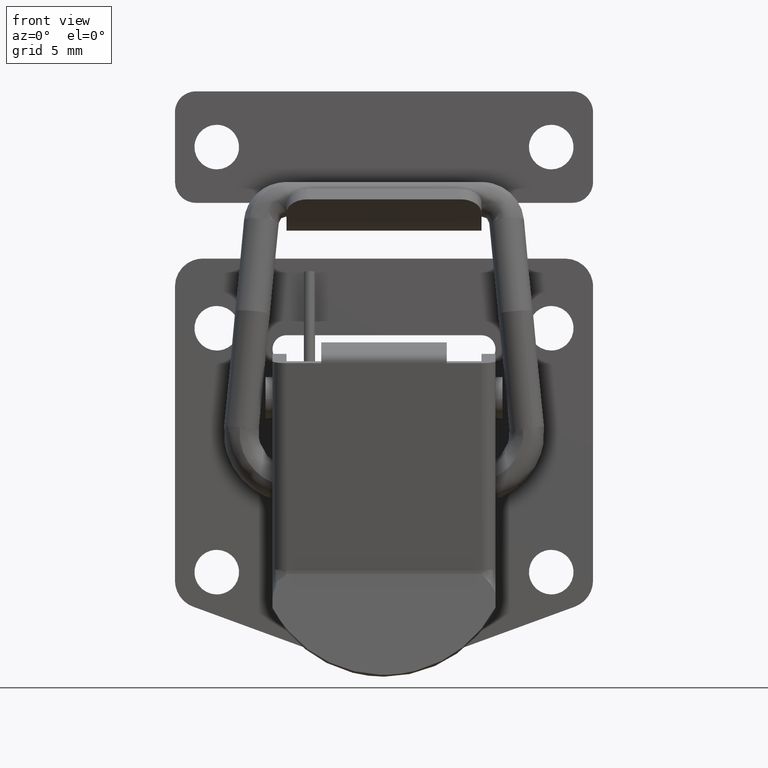
[diagram: clean part render]
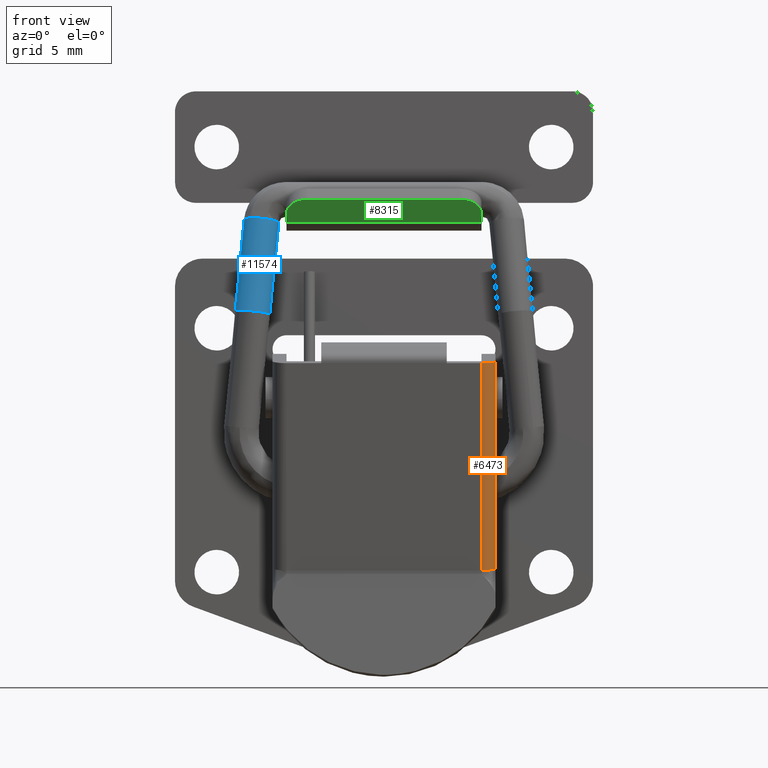
[diagram: same view with three faces highlighted in distinct colors, each labeled with its STEP entity id]
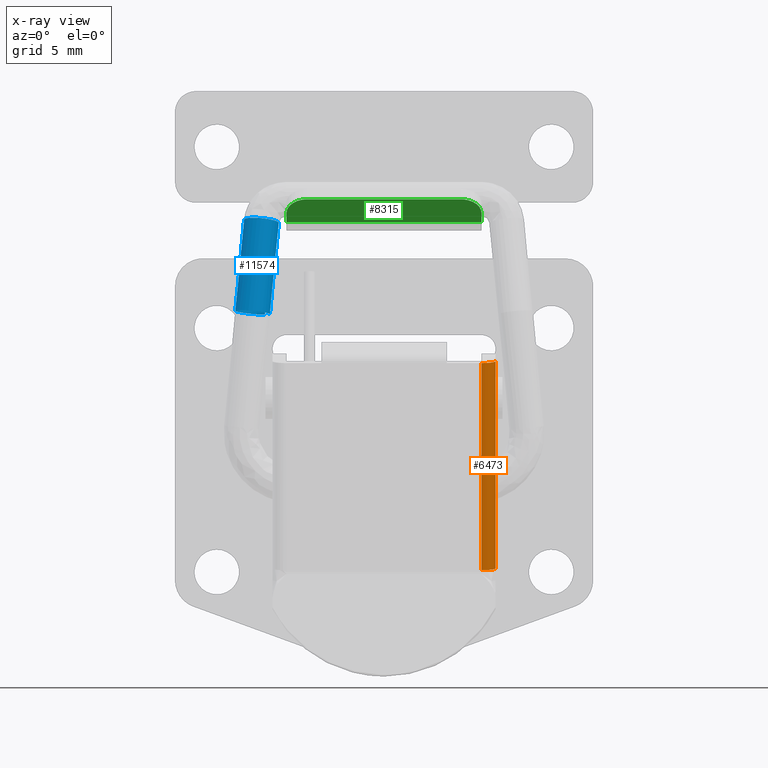
[diagram: x-ray of the same camera — body ghosted, the three highlighted faces saturated]
A machine part, front view with three faces highlighted in distinct colors.
The next image is the same camera in x-ray (body ghosted, the three faces saturated) — at least one of them is partly hidden behind the body in this view.
Their STEP definitions:

[orange] entity #6473 — the highlighted face is a freeform B-spline surface patch.
#6359=CARTESIAN_POINT('',(-4.026561013551754,-8.0,-25.984419423151000));
#6360=VERTEX_POINT('',#6359);
#6361=CARTESIAN_POINT('',(-5.017788914234390,-7.0,-26.116583143242000));
#6362=VERTEX_POINT('',#6361);
#6363=CARTESIAN_POINT('',(-4.026561013551754,-8.0,-25.984419423151000));
#6364=CARTESIAN_POINT('',(-5.017788914234389,-8.0,-26.116583143242014));
#6365=CARTESIAN_POINT('',(-5.017788914234389,-7.0,-26.116583143242021));
#6373=(BOUNDED_CURVE()B_SPLINE_CURVE(2,(#6363,#6364,#6365),.UNSPECIFIED.,.F.,.U.)CURVE()GEOMETRIC_REPRESENTATION_ITEM()QUASI_UNIFORM_CURVE()RATIONAL_B_SPLINE_CURVE((1.0,0.707106781186548,1.0))REPRESENTATION_ITEM(''));
#6374=EDGE_CURVE('',#6360,#6362,#6373,.T.);
#6429=CARTESIAN_POINT('',(-7.049215608099048,-6.973823051692125,-10.878290132212930));
#6430=CARTESIAN_POINT('',(-4.966655086116549,-6.973823051692125,-26.497494047081592));
#6431=CARTESIAN_POINT('',(-7.077797611097097,-8.074985213659804,-10.882101065946001));
#6432=CARTESIAN_POINT('',(-4.995237089114598,-8.074985213659806,-26.501304980814645));
#6433=CARTESIAN_POINT('',(-5.988623786308473,-7.997524453122785,-10.736877889307518));
#6434=CARTESIAN_POINT('',(-3.906063264325971,-7.997524453122785,-26.356081804176167));
#6442=(BOUNDED_SURFACE()B_SPLINE_SURFACE(1,2,((#6429,#6431,#6433),(#6430,#6432,#6434)),.UNSPECIFIED.,.F.,.F.,.U.)B_SPLINE_SURFACE_WITH_KNOTS((2,2),(3,3),(0.0,15.757429652769140),(0.0,0.994518882661778),.UNSPECIFIED.)GEOMETRIC_REPRESENTATION_ITEM()RATIONAL_B_SPLINE_SURFACE(((1.0,0.670944140329031,0.996392812444628),(1.0,0.670944140329031,0.996392812444628)))REPRESENTATION_ITEM('')SURFACE());
#6443=CARTESIAN_POINT('',(-7.0,-7.0,-11.250000000000000));
#6444=VERTEX_POINT('',#6443);
#6445=CARTESIAN_POINT('',(-6.008772078947930,-8.0,-11.117836432679781));
#6446=VERTEX_POINT('',#6445);
#6447=CARTESIAN_POINT('',(-6.999999999999990,-7.0,-11.250000000000011));
#6448=CARTESIAN_POINT('',(-6.999999999999992,-8.0,-11.250000000000012));
#6449=CARTESIAN_POINT('',(-6.008772078947930,-8.0,-11.117836432679781));
#6457=(BOUNDED_CURVE()B_SPLINE_CURVE(2,(#6447,#6448,#6449),.UNSPECIFIED.,.F.,.U.)CURVE()GEOMETRIC_REPRESENTATION_ITEM()QUASI_UNIFORM_CURVE()RATIONAL_B_SPLINE_CURVE((1.0,0.707106781186548,1.0))REPRESENTATION_ITEM(''));
#6458=EDGE_CURVE('',#6444,#6446,#6457,.T.);
#6459=ORIENTED_EDGE('',*,*,#6458,.F.);
#6460=CARTESIAN_POINT('',(-5.017788914234390,-7.0,-26.116583143242000));
#6461=CARTESIAN_POINT('',(-7.0,-7.0,-11.250000000000000));
#6462=QUASI_UNIFORM_CURVE('',1,(#6460,#6461),.UNSPECIFIED.,.F.,.U.);
#6463=EDGE_CURVE('',#6362,#6444,#6462,.T.);
#6464=ORIENTED_EDGE('',*,*,#6463,.F.);
#6465=ORIENTED_EDGE('',*,*,#6374,.F.);
#6466=CARTESIAN_POINT('',(-6.008772078947930,-8.0,-11.117836432679781));
#6467=CARTESIAN_POINT('',(-4.026561013551754,-8.0,-25.984419423151000));
#6468=QUASI_UNIFORM_CURVE('',1,(#6466,#6467),.UNSPECIFIED.,.F.,.U.);
#6469=EDGE_CURVE('',#6446,#6360,#6468,.T.);
#6470=ORIENTED_EDGE('',*,*,#6469,.F.);
#6471=EDGE_LOOP('',(#6459,#6464,#6465,#6470));
#6472=FACE_OUTER_BOUND('',#6471,.T.);
#6473=ADVANCED_FACE('',(#6472),#6442,.T.);

[blue] entity #11574 — the highlighted face is a freeform B-spline surface patch.
#11405=CARTESIAN_POINT('',(-0.069625795268853,7.555015802306856,-1.069074266669856));
#11406=CARTESIAN_POINT('',(-0.694676612936422,7.444060039487616,-0.964376398637528));
#11407=CARTESIAN_POINT('',(-1.138206590349732,7.892951629042928,-0.838921827168548));
#11408=CARTESIAN_POINT('',(-1.999900640680999,8.765062267921133,-0.595187551410810));
#11409=CARTESIAN_POINT('',(-1.123034404584248,9.652668221964676,-0.671090610242223));
#11410=CARTESIAN_POINT('',(-0.246168168487497,10.540274176008221,-0.746993669073636));
#11411=CARTESIAN_POINT('',(0.615525881843770,9.668163537130019,-0.990727944831374));
#11412=CARTESIAN_POINT('',(1.477219932175036,8.796052898251816,-1.234462220589112));
#11413=CARTESIAN_POINT('',(0.600353696078286,7.908446944208270,-1.158559161757699));
#11414=CARTESIAN_POINT('',(-1.360372488052192,8.232593019887833,-8.056811385198433));
#11415=CARTESIAN_POINT('',(-1.985423305719762,8.121637257068592,-7.952113517166107));
#11416=CARTESIAN_POINT('',(-2.428953283133071,8.570528846623903,-7.826658945697125));
#11417=CARTESIAN_POINT('',(-3.290647333464338,9.442639485502106,-7.582924669939388));
#11418=CARTESIAN_POINT('',(-2.413781097367588,10.330245439545649,-7.658827728770800));
#11419=CARTESIAN_POINT('',(-1.536914861270837,11.217851393589196,-7.734730787602213));
#11420=CARTESIAN_POINT('',(-0.675220810939570,10.345740754710990,-7.978465063359951));
#11421=CARTESIAN_POINT('',(0.186473239391697,9.473630115832789,-8.222199339117688));
#11422=CARTESIAN_POINT('',(-0.690392996705054,8.586024161789245,-8.146296280286276));
#11430=(BOUNDED_SURFACE()B_SPLINE_SURFACE(2,1,((#11405,#11414),(#11406,#11415),(#11407,#11416),(#11408,#11417),(#11409,#11418),(#11410,#11419),(#11411,#11420),(#11412,#11421),(#11413,#11422)),.UNSPECIFIED.,.F.,.F.,.U.)B_SPLINE_SURFACE_WITH_KNOTS((3,2,2,2,3),(2,2),(0.628318530717959,1.570796326794897,3.141592653589793,4.712388980384690,6.283185307179586),(0.0,7.138179596254074),.UNSPECIFIED.)GEOMETRIC_REPRESENTATION_ITEM()RATIONAL_B_SPLINE_SURFACE(((0.859411254969543,0.859411254969543),(0.824264068711928,0.824264068711928),(1.0,1.0),(0.707106781186548,0.707106781186548),(1.0,1.0),(0.707106781186548,0.707106781186548),(1.0,1.0),(0.707106781186548,0.707106781186548),(1.0,1.0)))REPRESENTATION_ITEM('')SURFACE());
#11431=CARTESIAN_POINT('',(-0.292054119412797,7.552516236013876,-1.201743033290574));
#11432=VERTEX_POINT('',#11431);
#11433=CARTESIAN_POINT('',(-0.100378387832229,7.571379415576050,-1.235319504746531));
#11434=VERTEX_POINT('',#11433);
#11435=CARTESIAN_POINT('',(-0.292054119412797,7.552516236013876,-1.201743033290574));
#11436=CARTESIAN_POINT('',(-0.227844515966479,7.553575343420776,-1.213500874899345));
#11437=CARTESIAN_POINT('',(-0.163713691710670,7.559967130243473,-1.224727072859049));
#11438=CARTESIAN_POINT('',(-0.100378387832229,7.571379415576050,-1.235319504746531));
#11439=B_SPLINE_CURVE_WITH_KNOTS('',3,(#11435,#11436,#11437,#11438),.UNSPECIFIED.,.F.,.U.,(4,4),(0.500000000000000,0.524932353957632),.UNSPECIFIED.);
#11440=EDGE_CURVE('',#11432,#11434,#11439,.T.);
#11441=ORIENTED_EDGE('',*,*,#11440,.F.);
#11442=CARTESIAN_POINT('',(-1.188218678326777,9.632455353648703,-0.834522464292762));
#11443=VERTEX_POINT('',#11442);
#11444=CARTESIAN_POINT('',(-1.188218678326777,9.632455353648703,-0.834522464292762));
#11445=CARTESIAN_POINT('',(-1.399340593692677,9.400569734067934,-0.818010036998653));
#11446=CARTESIAN_POINT('',(-1.521448720224827,9.087558661571311,-0.825806339316114));
#11447=CARTESIAN_POINT('',(-1.521448711531985,8.449144325478439,-0.887711218305761));
#11448=CARTESIAN_POINT('',(-1.388953046593922,8.127779612197580,-0.943346933128190));
#11449=CARTESIAN_POINT('',(-0.933781690152653,7.675216595311739,-1.071307859186364));
#11450=CARTESIAN_POINT('',(-0.613908867719174,7.546805099057850,-1.142845108445356));
#11451=CARTESIAN_POINT('',(-0.292054119412797,7.552516236013876,-1.201743033290574));
#11452=B_SPLINE_CURVE_WITH_KNOTS('',3,(#11444,#11445,#11446,#11447,#11448,#11449,#11450,#11451),.UNSPECIFIED.,.F.,.U.,(4,2,2,4),(0.129999936112298,0.250000000000000,0.375000000000000,0.500000000000000),.UNSPECIFIED.);
#11453=EDGE_CURVE('',#11443,#11432,#11452,.T.);
#11454=ORIENTED_EDGE('',*,*,#11453,.F.);
#11455=CARTESIAN_POINT('',(-0.292054153294648,10.040845317670369,-0.960458178020726));
#11456=VERTEX_POINT('',#11455);
#11457=CARTESIAN_POINT('',(-0.292054153294648,10.040845317670369,-0.960458178020726));
#11458=CARTESIAN_POINT('',(-0.613908901601025,10.035134180714341,-0.901560253175508));
#11459=CARTESIAN_POINT('',(-0.933781720382953,9.895370747000360,-0.856027019881005));
#11460=CARTESIAN_POINT('',(-1.170470702889908,9.651638259967244,-0.835940697426351));
#11461=CARTESIAN_POINT('',(-1.179421873311147,9.642117318764271,-0.835210486675410));
#11462=CARTESIAN_POINT('',(-1.188218678326777,9.632455353648703,-0.834522464292762));
#11463=B_SPLINE_CURVE_WITH_KNOTS('',3,(#11457,#11458,#11459,#11460,#11461,#11462),.UNSPECIFIED.,.F.,.U.,(4,2,4),(0.0,0.125000000000000,0.129999936112299),.UNSPECIFIED.);
#11464=EDGE_CURVE('',#11456,#11443,#11463,.T.);
#11465=ORIENTED_EDGE('',*,*,#11464,.F.);
#11466=CARTESIAN_POINT('',(0.569638777886560,7.924570560426446,-1.324834630594513));
#11467=VERTEX_POINT('',#11466);
#11468=CARTESIAN_POINT('',(0.569638777886560,7.924570560426446,-1.324834630594513));
#11469=CARTESIAN_POINT('',(0.572190463569276,7.927151422322250,-1.325055710267011));
#11470=CARTESIAN_POINT('',(0.574730877092285,7.929744019405222,-1.325273569870129));
#11471=CARTESIAN_POINT('',(0.804845524027355,8.166706616322003,-1.344801960833920));
#11472=CARTESIAN_POINT('',(0.937341096270474,8.492773541022096,-1.337658403906183));
#11473=CARTESIAN_POINT('',(0.937340884161550,9.144216777109589,-1.274490119007674));
#11474=CARTESIAN_POINT('',(0.804845101115640,9.465581610025696,-1.218854370768212));
#11475=CARTESIAN_POINT('',(0.349673542169118,9.918144832035635,-1.090893387413893));
#11476=CARTESIAN_POINT('',(0.029800636585229,10.046556412515260,-1.019356114628608));
#11477=CARTESIAN_POINT('',(-0.292054153294648,10.040845317670369,-0.960458178020726));
#11478=B_SPLINE_CURVE_WITH_KNOTS('',3,(#11468,#11469,#11470,#11471,#11472,#11473,#11474,#11475,#11476,#11477),.UNSPECIFIED.,.F.,.U.,(4,2,2,2,4),(0.623610952803161,0.625000000000000,0.750000000000000,0.875000000000000,1.0),.UNSPECIFIED.);
#11479=EDGE_CURVE('',#11467,#11456,#11478,.T.);
#11480=ORIENTED_EDGE('',*,*,#11479,.F.);
#11481=CARTESIAN_POINT('',(-0.623863535972060,8.551099497711860,-7.786124485352691));
#11482=VERTEX_POINT('',#11481);
#11483=CARTESIAN_POINT('',(0.569638777886560,7.924570560426446,-1.324834630594513));
#11484=CARTESIAN_POINT('',(-0.623863535972060,8.551099497711860,-7.786124485352691));
#11485=QUASI_UNIFORM_CURVE('',1,(#11483,#11484),.UNSPECIFIED.,.F.,.U.);
#11486=EDGE_CURVE('',#11467,#11482,#11485,.T.);
#11487=ORIENTED_EDGE('',*,*,#11486,.T.);
#11488=CARTESIAN_POINT('',(-0.249999999996463,9.441789823576100,-7.733999071535275));
#11489=VERTEX_POINT('',#11488);
#11490=CARTESIAN_POINT('',(-0.249999999996463,9.441789823576100,-7.733999071535275));
#11491=CARTESIAN_POINT('',(-0.249999999996335,8.920068292204430,-7.784588642605674));
#11492=CARTESIAN_POINT('',(-0.623863535972060,8.551099497711860,-7.786124485352691));
#11500=(BOUNDED_CURVE()B_SPLINE_CURVE(2,(#11490,#11491,#11492),.UNSPECIFIED.,.F.,.U.)B_SPLINE_CURVE_WITH_KNOTS((3,3),(0.500000000000000,0.626316765876024),.UNSPECIFIED.)CURVE()GEOMETRIC_REPRESENTATION_ITEM()RATIONAL_B_SPLINE_CURVE((1.0,0.852010703409864,0.853569641455998))REPRESENTATION_ITEM(''));
#11501=EDGE_CURVE('',#11489,#11482,#11500,.T.);
#11502=ORIENTED_EDGE('',*,*,#11501,.F.);
#11503=CARTESIAN_POINT('',(-0.633726063095454,10.335355427364091,-7.612204659420497));
#11504=VERTEX_POINT('',#11503);
#11505=CARTESIAN_POINT('',(-0.633726063095454,10.335355427364085,-7.612204659420497));
#11506=CARTESIAN_POINT('',(-0.249999935659128,9.971578236123802,-7.682625918012193));
#11507=CARTESIAN_POINT('',(-0.249999999996463,9.441789823576100,-7.733999071535275));
#11515=(BOUNDED_CURVE()B_SPLINE_CURVE(2,(#11505,#11506,#11507),.UNSPECIFIED.,.F.,.U.)B_SPLINE_CURVE_WITH_KNOTS((3,3),(0.372022918444464,0.500000000000000),.UNSPECIFIED.)CURVE()GEOMETRIC_REPRESENTATION_ITEM()RATIONAL_B_SPLINE_CURVE((0.853636459933151,0.850065522595389,1.0))REPRESENTATION_ITEM(''));
#11516=EDGE_CURVE('',#11504,#11489,#11515,.T.);
#11517=ORIENTED_EDGE('',*,*,#11516,.F.);
#11518=CARTESIAN_POINT('',(-2.295096149579440,10.383825598948800,-7.455344371955853));
#11519=VERTEX_POINT('',#11518);
#11520=CARTESIAN_POINT('',(-2.295096149579439,10.383825598948798,-7.455344371955853));
#11521=CARTESIAN_POINT('',(-1.948794652174806,10.671007571564621,-7.459214142076943));
#11522=CARTESIAN_POINT('',(-1.500000012059694,10.674956144778561,-7.499935126274984));
#11523=CARTESIAN_POINT('',(-0.996621405423630,10.679384957212951,-7.545608738333280));
#11524=CARTESIAN_POINT('',(-0.633726063095454,10.335355427364085,-7.612204659420497));
#11532=(BOUNDED_CURVE()B_SPLINE_CURVE(2,(#11520,#11521,#11522,#11523,#11524),.UNSPECIFIED.,.F.,.U.)B_SPLINE_CURVE_WITH_KNOTS((3,2,3),(0.139495650650486,0.250000000000000,0.372022918444464),.UNSPECIFIED.)CURVE()GEOMETRIC_REPRESENTATION_ITEM()RATIONAL_B_SPLINE_CURVE((0.855522794172210,0.870536101704538,1.0,0.857041258591159,0.853636459933151))REPRESENTATION_ITEM(''));
#11533=EDGE_CURVE('',#11519,#11504,#11532,.T.);
#11534=ORIENTED_EDGE('',*,*,#11533,.F.);
#11535=CARTESIAN_POINT('',(-2.749999999996457,9.419793607958622,-7.507155889171805));
#11536=VERTEX_POINT('',#11535);
#11537=CARTESIAN_POINT('',(-2.749999999996457,9.419793607958622,-7.507155889171805));
#11538=CARTESIAN_POINT('',(-2.750000068750748,10.006581156548226,-7.450258359265518));
#11539=CARTESIAN_POINT('',(-2.295096149579439,10.383825598948798,-7.455344371955853));
#11547=(BOUNDED_CURVE()B_SPLINE_CURVE(2,(#11537,#11538,#11539),.UNSPECIFIED.,.F.,.U.)B_SPLINE_CURVE_WITH_KNOTS((3,3),(0.0,0.139495650650486),.UNSPECIFIED.)CURVE()GEOMETRIC_REPRESENTATION_ITEM()RATIONAL_B_SPLINE_CURVE((1.0,0.836570679482009,0.855522794172210))REPRESENTATION_ITEM(''));
#11548=EDGE_CURVE('',#11536,#11519,#11547,.T.);
#11549=ORIENTED_EDGE('',*,*,#11548,.F.);
#11550=CARTESIAN_POINT('',(-1.305072185257500,8.203563137093255,-7.757431204757470));
#11551=VERTEX_POINT('',#11550);
#11552=CARTESIAN_POINT('',(-1.305072185257500,8.203563137093255,-7.757431204757470));
#11553=CARTESIAN_POINT('',(-1.401936245109592,8.187489987237210,-7.750117942581574));
#11554=CARTESIAN_POINT('',(-1.499999999996154,8.186627174638513,-7.741219904888381));
#11555=CARTESIAN_POINT('',(-2.749999999996152,8.175629066829774,-7.627798313706645));
#11556=CARTESIAN_POINT('',(-2.749999999996457,9.419793607958622,-7.507155889171805));
#11564=(BOUNDED_CURVE()B_SPLINE_CURVE(2,(#11552,#11553,#11554,#11555,#11556),.UNSPECIFIED.,.F.,.U.)B_SPLINE_CURVE_WITH_KNOTS((3,2,3),(0.723136329176430,0.750000000000000,1.0),.UNSPECIFIED.)CURVE()GEOMETRIC_REPRESENTATION_ITEM()RATIONAL_B_SPLINE_CURVE((0.943818292218519,0.968527251933358,1.0,0.707106781186548,1.0))REPRESENTATION_ITEM(''));
#11565=EDGE_CURVE('',#11551,#11536,#11564,.T.);
#11566=ORIENTED_EDGE('',*,*,#11565,.F.);
#11567=CARTESIAN_POINT('',(-0.100378387832229,7.571379415576050,-1.235319504746531));
#11568=CARTESIAN_POINT('',(-1.305072185257500,8.203563137093255,-7.757431204757470));
#11569=QUASI_UNIFORM_CURVE('',1,(#11567,#11568),.UNSPECIFIED.,.F.,.U.);
#11570=EDGE_CURVE('',#11434,#11551,#11569,.T.);
#11571=ORIENTED_EDGE('',*,*,#11570,.F.);
#11572=EDGE_LOOP('',(#11441,#11454,#11465,#11480,#11487,#11502,#11517,#11534,#11549,#11566,#11571));
#11573=FACE_OUTER_BOUND('',#11572,.T.);
#11574=ADVANCED_FACE('',(#11573),#11430,.T.);

[green] entity #8315 — the highlighted face is a freeform B-spline surface patch.
#7844=CARTESIAN_POINT('',(-3.499985022576080,-5.500000000000170,0.001603900844056));
#7845=VERTEX_POINT('',#7844);
#7851=CARTESIAN_POINT('',(-2.374443473630875,-7.000000000000230,-0.989948262078857));
#7852=VERTEX_POINT('',#7851);
#7853=CARTESIAN_POINT('',(-2.374443473630875,-7.000000000000230,-0.989948262078857));
#7854=CARTESIAN_POINT('',(-2.840658048218375,-7.000000000000210,-0.579233908395783));
#7855=CARTESIAN_POINT('',(-3.170321535397209,-6.560660171780035,-0.288815003775856));
#7856=CARTESIAN_POINT('',(-3.499985022576048,-6.121320343559855,0.001603900844075));
#7857=CARTESIAN_POINT('',(-3.499985022576080,-5.500000000000170,0.001603900844056));
#7865=(BOUNDED_CURVE()B_SPLINE_CURVE(2,(#7853,#7854,#7855,#7856,#7857),.UNSPECIFIED.,.F.,.U.)B_SPLINE_CURVE_WITH_KNOTS((3,2,3),(0.0,0.500000000000000,1.0),.UNSPECIFIED.)CURVE()GEOMETRIC_REPRESENTATION_ITEM()RATIONAL_B_SPLINE_CURVE((1.0,0.923879532511310,1.0,0.923879532511310,1.0))REPRESENTATION_ITEM(''));
#7866=EDGE_CURVE('',#7852,#7845,#7865,.T.);
#7890=CARTESIAN_POINT('',(-3.499985022576080,5.499999999999840,0.001603900844056));
#7891=VERTEX_POINT('',#7890);
#7892=CARTESIAN_POINT('',(-2.374443473630845,6.999999999999780,-0.989948262078881));
#7893=VERTEX_POINT('',#7892);
#7894=CARTESIAN_POINT('',(-3.499985022576080,5.499999999999840,0.001603900844056));
#7895=CARTESIAN_POINT('',(-3.499985022576047,6.121320343559447,0.001603900844075));
#7896=CARTESIAN_POINT('',(-3.170321535397199,6.560660171779629,-0.288815003775865));
#7897=CARTESIAN_POINT('',(-2.840658048218366,6.999999999999791,-0.579233908395791));
#7898=CARTESIAN_POINT('',(-2.374443473630845,6.999999999999780,-0.989948262078881));
#7906=(BOUNDED_CURVE()B_SPLINE_CURVE(2,(#7894,#7895,#7896,#7897,#7898),.UNSPECIFIED.,.F.,.U.)B_SPLINE_CURVE_WITH_KNOTS((3,2,3),(0.0,0.500000000000000,1.0),.UNSPECIFIED.)CURVE()GEOMETRIC_REPRESENTATION_ITEM()RATIONAL_B_SPLINE_CURVE((1.0,0.923879532511282,1.0,0.923879532511282,1.0))REPRESENTATION_ITEM(''));
#7907=EDGE_CURVE('',#7891,#7893,#7906,.T.);
#8115=CARTESIAN_POINT('',(-1.646699135295215,6.999999999999780,-1.631058733218605));
#8116=VERTEX_POINT('',#8115);
#8117=CARTESIAN_POINT('',(-1.646699135295215,6.999999999999780,-1.631058733218605));
#8118=CARTESIAN_POINT('',(-2.374443473630845,6.999999999999780,-0.989948262078881));
#8119=QUASI_UNIFORM_CURVE('',1,(#8117,#8118),.UNSPECIFIED.,.F.,.U.);
#8120=EDGE_CURVE('',#8116,#7893,#8119,.T.);
#8212=CARTESIAN_POINT('',(-1.646699135295215,-7.000000000000230,-1.631058733218605));
#8213=VERTEX_POINT('',#8212);
#8214=CARTESIAN_POINT('',(-2.374443473630875,-7.000000000000230,-0.989948262078857));
#8215=CARTESIAN_POINT('',(-1.646699135295215,-7.000000000000230,-1.631058733218605));
#8216=QUASI_UNIFORM_CURVE('',1,(#8214,#8215),.UNSPECIFIED.,.F.,.U.);
#8217=EDGE_CURVE('',#7852,#8213,#8216,.T.);
#8289=CARTESIAN_POINT('',(-3.499985022576080,-5.500000000000170,0.001603900844056));
#8290=CARTESIAN_POINT('',(-3.499985022576080,5.499999999999840,0.001603900844056));
#8291=QUASI_UNIFORM_CURVE('',1,(#8289,#8290),.UNSPECIFIED.,.F.,.U.);
#8292=EDGE_CURVE('',#7845,#7891,#8291,.T.);
#8298=CARTESIAN_POINT('',(-1.554127567630768,-7.699299972865516,-1.712610176813795));
#8299=CARTESIAN_POINT('',(-3.592556557101192,-7.699299972865516,0.083155315244965));
#8300=CARTESIAN_POINT('',(-1.554127567630768,7.699300348374325,-1.712610176813795));
#8301=CARTESIAN_POINT('',(-3.592556557101192,7.699300348374325,0.083155315244965));
#8302=B_SPLINE_SURFACE_WITH_KNOTS('',1,1,((#8298,#8300),(#8299,#8301)),.UNSPECIFIED.,.F.,.F.,.U.,(2,2),(2,2),(0.0,2.716609366026417),(0.0,15.398600321239840),.UNSPECIFIED.);
#8303=ORIENTED_EDGE('',*,*,#8292,.T.);
#8304=ORIENTED_EDGE('',*,*,#7907,.T.);
#8305=ORIENTED_EDGE('',*,*,#8120,.F.);
#8306=CARTESIAN_POINT('',(-1.646699135295215,-7.000000000000230,-1.631058733218605));
#8307=CARTESIAN_POINT('',(-1.646699135295215,6.999999999999780,-1.631058733218605));
#8308=QUASI_UNIFORM_CURVE('',1,(#8306,#8307),.UNSPECIFIED.,.F.,.U.);
#8309=EDGE_CURVE('',#8213,#8116,#8308,.T.);
#8310=ORIENTED_EDGE('',*,*,#8309,.F.);
#8311=ORIENTED_EDGE('',*,*,#8217,.F.);
#8312=ORIENTED_EDGE('',*,*,#7866,.T.);
#8313=EDGE_LOOP('',(#8303,#8304,#8305,#8310,#8311,#8312));
#8314=FACE_OUTER_BOUND('',#8313,.T.);
#8315=ADVANCED_FACE('',(#8314),#8302,.T.);